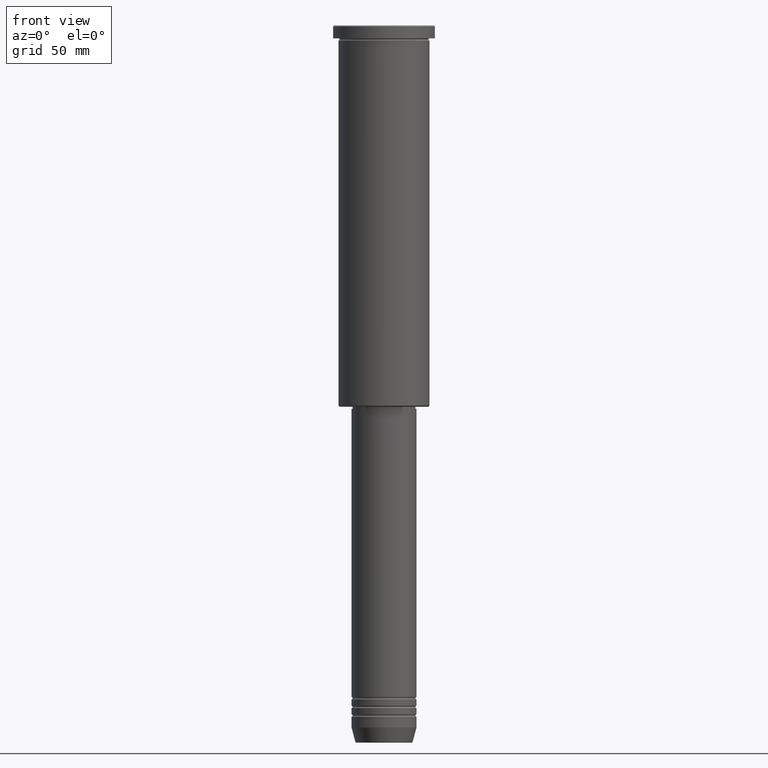
[diagram: clean part render]
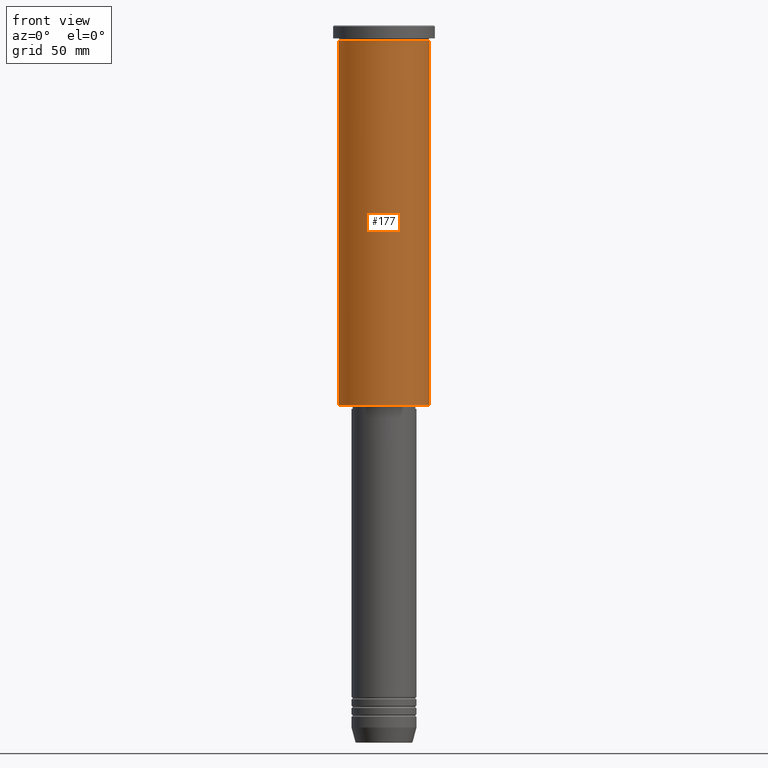
[diagram: same view with one face highlighted and labeled with its STEP entity id]
A machine part, front view. The second image highlights one B-rep face of the part: STEP entity #177.
In plain terms, the highlighted cylindrical surface (partial cylindrical patch) has radius 21 mm, axis along (-0, -0, 1).
Its self-contained STEP definition (entity closure, byte-faithful):
#78 = ORIENTED_EDGE ( 'NONE', *, *, #1029, .T. ) ;
#118 = CARTESIAN_POINT ( 'NONE',  ( -21.00000000000000000, 2.571758278209441661E-15, 0.000000000000000000 ) ) ;
#120 = VERTEX_POINT ( 'NONE', #493 ) ;
#155 = AXIS2_PLACEMENT_3D ( 'NONE', #1170, #537, #620 ) ;
#175 = CIRCLE ( 'NONE', #228, 21.00000000000000000 ) ;
#177 = ADVANCED_FACE ( 'NONE', ( #761 ), #254, .T. ) ;
#218 = AXIS2_PLACEMENT_3D ( 'NONE', #718, #270, #641 ) ;
#224 = EDGE_CURVE ( 'NONE', #120, #528, #175, .T. ) ;
#228 = AXIS2_PLACEMENT_3D ( 'NONE', #558, #918, #370 ) ;
#254 = CYLINDRICAL_SURFACE ( 'NONE', #155, 21.00000000000000000 ) ;
#262 = CIRCLE ( 'NONE', #218, 21.00000000000000000 ) ;
#270 = DIRECTION ( 'NONE',  ( -0.000000000000000000, -0.000000000000000000, 1.000000000000000000 ) ) ;
#287 = CARTESIAN_POINT ( 'NONE',  ( 21.00000000000000000, 0.000000000000000000, 0.000000000000000000 ) ) ;
#298 = VERTEX_POINT ( 'NONE', #562 ) ;
#344 = ORIENTED_EDGE ( 'NONE', *, *, #651, .T. ) ;
#370 = DIRECTION ( 'NONE',  ( 1.000000000000000000, 0.000000000000000000, 0.000000000000000000 ) ) ;
#390 = ORIENTED_EDGE ( 'NONE', *, *, #224, .F. ) ;
#489 = DIRECTION ( 'NONE',  ( -0.000000000000000000, -0.000000000000000000, 1.000000000000000000 ) ) ;
#493 = CARTESIAN_POINT ( 'NONE',  ( -21.00000000000000000, 2.571758278209441661E-15, -6.999999999999993783 ) ) ;
#528 = VERTEX_POINT ( 'NONE', #1003 ) ;
#537 = DIRECTION ( 'NONE',  ( -0.000000000000000000, -0.000000000000000000, 1.000000000000000000 ) ) ;
#558 = CARTESIAN_POINT ( 'NONE',  ( 0.000000000000000000, 0.000000000000000000, -6.999999999999993783 ) ) ;
#562 = CARTESIAN_POINT ( 'NONE',  ( -21.00000000000000000, 2.571758278209441661E-15, -175.4999999999999432 ) ) ;
#587 = VECTOR ( 'NONE', #623, 1000.000000000000000 ) ;
#620 = DIRECTION ( 'NONE',  ( 1.000000000000000000, 0.000000000000000000, 0.000000000000000000 ) ) ;
#623 = DIRECTION ( 'NONE',  ( -0.000000000000000000, -0.000000000000000000, 1.000000000000000000 ) ) ;
#627 = CARTESIAN_POINT ( 'NONE',  ( 21.00000000000000000, 0.000000000000000000, -175.4999999999999432 ) ) ;
#641 = DIRECTION ( 'NONE',  ( -1.000000000000000000, 0.000000000000000000, 0.000000000000000000 ) ) ;
#651 = EDGE_CURVE ( 'NONE', #798, #528, #1086, .T. ) ;
#677 = LINE ( 'NONE', #118, #1093 ) ;
#718 = CARTESIAN_POINT ( 'NONE',  ( 0.000000000000000000, 0.000000000000000000, -175.4999999999999432 ) ) ;
#761 = FACE_OUTER_BOUND ( 'NONE', #775, .T. ) ;
#775 = EDGE_LOOP ( 'NONE', ( #828, #78, #344, #390 ) ) ;
#798 = VERTEX_POINT ( 'NONE', #627 ) ;
#828 = ORIENTED_EDGE ( 'NONE', *, *, #1098, .F. ) ;
#918 = DIRECTION ( 'NONE',  ( -0.000000000000000000, -0.000000000000000000, 1.000000000000000000 ) ) ;
#1003 = CARTESIAN_POINT ( 'NONE',  ( 21.00000000000000000, 0.000000000000000000, -6.999999999999993783 ) ) ;
#1029 = EDGE_CURVE ( 'NONE', #298, #798, #262, .T. ) ;
#1086 = LINE ( 'NONE', #287, #587 ) ;
#1093 = VECTOR ( 'NONE', #489, 1000.000000000000000 ) ;
#1098 = EDGE_CURVE ( 'NONE', #298, #120, #677, .T. ) ;
#1170 = CARTESIAN_POINT ( 'NONE',  ( 0.000000000000000000, 0.000000000000000000, 0.000000000000000000 ) ) ;